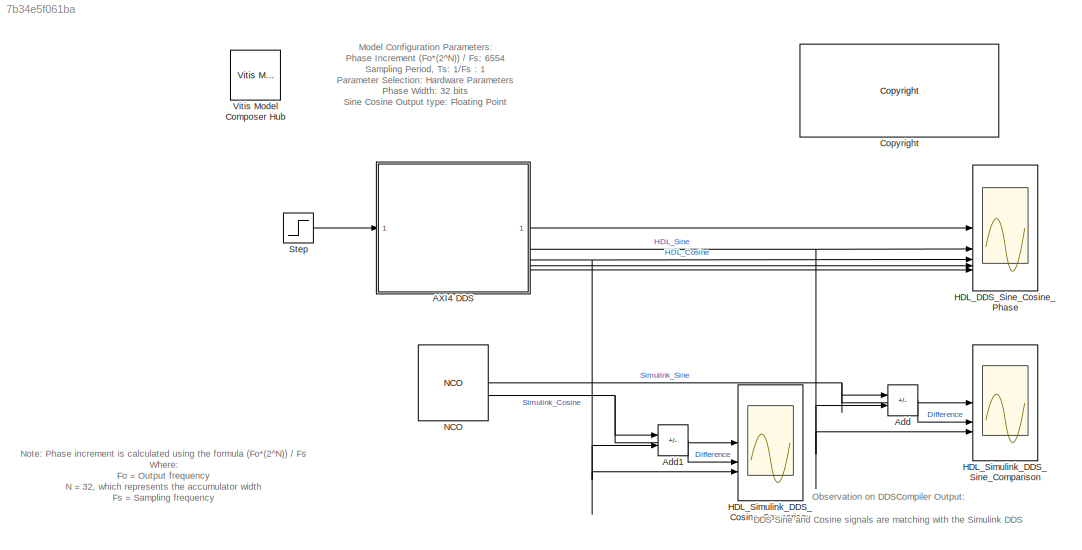
MODEL slx_7b34e5f061ba
KIND model
CONFIG AbsTol = auto
CONFIG EnableMultiTasking = on
CONFIG FixedStep = auto
CONFIG MaxStep = auto
CONFIG MinStep = auto
CONFIG RelTol = 1e-3
CONFIG SampleTimeConstraint = Unconstrained
CONFIG SolverName = VariableStepDiscrete
CONFIG StartTime = 0.0
CONFIG StopTime = 1e6
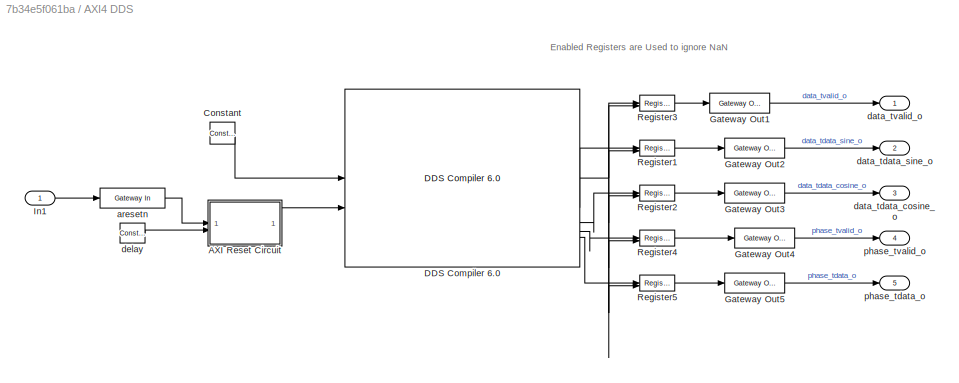
BLOCK [SubSystem] AXI4 DDS
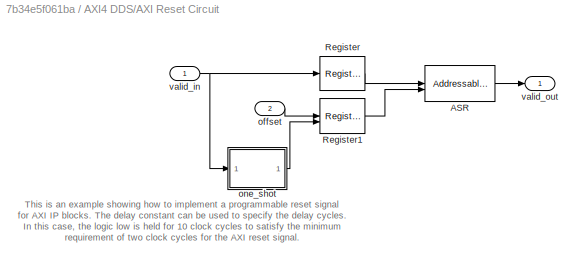
BLOCK [SubSystem] AXI4 DDS/AXI Reset Circuit
BLOCK [Reference] AXI4 DDS/AXI Reset Circuit/ASR  REF=hdlBasic/Addressable Shift Register
  SourceBlock = hdlBasic/Addressable Shift Register
  SourceType = Addressable Shift Register Block
BLOCK [Reference] AXI4 DDS/AXI Reset Circuit/Register  REF=hdlBasic/Register
  SourceBlock = hdlBasic/Register
  SourceType = Register Block
BLOCK [Reference] AXI4 DDS/AXI Reset Circuit/Register1  REF=hdlBasic/Register
  SourceBlock = hdlBasic/Register
  SourceType = Register Block
BLOCK [Inport] AXI4 DDS/AXI Reset Circuit/offset
  Port = 2
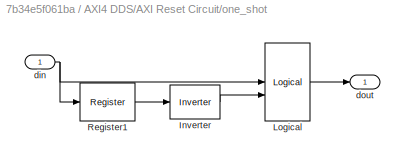
BLOCK [SubSystem] AXI4 DDS/AXI Reset Circuit/one_shot
BLOCK [Reference] AXI4 DDS/AXI Reset Circuit/one_shot/Inverter  REF=hdlBasic/Inverter
  SourceBlock = hdlBasic/Inverter
  SourceType = Inverter Block
BLOCK [Reference] AXI4 DDS/AXI Reset Circuit/one_shot/Logical  REF=hdlBasic/Logical
  SourceBlock = hdlBasic/Logical
  SourceType = Logical Block Block
BLOCK [Reference] AXI4 DDS/AXI Reset Circuit/one_shot/Register1  REF=hdlBasic/Register
  SourceBlock = hdlBasic/Register
  SourceType = Register Block
BLOCK [Inport] AXI4 DDS/AXI Reset Circuit/one_shot/din
BLOCK [Outport] AXI4 DDS/AXI Reset Circuit/one_shot/dout
  VectorParamsAs1DForOutWhenUnconnected = off
BLOCK [Inport] AXI4 DDS/AXI Reset Circuit/valid_in
BLOCK [Outport] AXI4 DDS/AXI Reset Circuit/valid_out
  VectorParamsAs1DForOutWhenUnconnected = off
BLOCK [Reference] AXI4 DDS/Constant  REF=hdlBasic/Constant
  SourceBlock = hdlBasic/Constant
  SourceType = Constant Block Block
BLOCK [Reference] AXI4 DDS/DDS Compiler 6.0  REF=hdlDSPIP/DDS Compiler 6.0 
  SourceBlock = hdlDSPIP/DDS Compiler 6.0
  SourceType = DDS Compiler 6.0 Block
BLOCK [Reference] AXI4 DDS/Gateway Out1  REF=hdlBasic/Gateway Out
  SourceBlock = hdlBasic/Gateway Out
  SourceType = Gateway Out Block
BLOCK [Reference] AXI4 DDS/Gateway Out2  REF=hdlBasic/Gateway Out
  SourceBlock = hdlBasic/Gateway Out
  SourceType = Gateway Out Block
BLOCK [Reference] AXI4 DDS/Gateway Out3  REF=hdlBasic/Gateway Out
  SourceBlock = hdlBasic/Gateway Out
  SourceType = Gateway Out Block
BLOCK [Reference] AXI4 DDS/Gateway Out4  REF=hdlBasic/Gateway Out
  SourceBlock = hdlBasic/Gateway Out
  SourceType = Gateway Out Block
BLOCK [Reference] AXI4 DDS/Gateway Out5  REF=hdlBasic/Gateway Out
  SourceBlock = hdlBasic/Gateway Out
  SourceType = Gateway Out Block
BLOCK [Inport] AXI4 DDS/In1
BLOCK [Reference] AXI4 DDS/Register1  REF=hdlBasic/Register
  SourceBlock = hdlBasic/Register
  SourceType = Register Block
BLOCK [Reference] AXI4 DDS/Register2  REF=hdlBasic/Register
  SourceBlock = hdlBasic/Register
  SourceType = Register Block
BLOCK [Reference] AXI4 DDS/Register3  REF=hdlBasic/Register
  SourceBlock = hdlBasic/Register
  SourceType = Register Block
BLOCK [Reference] AXI4 DDS/Register4  REF=hdlBasic/Register
  SourceBlock = hdlBasic/Register
  SourceType = Register Block
BLOCK [Reference] AXI4 DDS/Register5  REF=hdlBasic/Register
  SourceBlock = hdlBasic/Register
  SourceType = Register Block
BLOCK [Reference] AXI4 DDS/aresetn  REF=hdlBasic/Gateway In
  SourceBlock = hdlBasic/Gateway In
  SourceType = Gateway In Block
BLOCK [Outport] AXI4 DDS/data_tdata_cosine_o
  Port = 3
BLOCK [Outport] AXI4 DDS/data_tdata_sine_o
  Port = 2
BLOCK [Outport] AXI4 DDS/data_tvalid_o
BLOCK [Reference] AXI4 DDS/delay  REF=hdlBasic/Constant
  SourceBlock = hdlBasic/Constant
  SourceType = Constant Block Block
BLOCK [Outport] AXI4 DDS/phase_tdata_o
  Port = 5
BLOCK [Outport] AXI4 DDS/phase_tvalid_o
  Port = 4
BLOCK [Sum] Add
  IconShape = rectangular
  Inputs = +-
BLOCK [Sum] Add1
  IconShape = rectangular
  Inputs = +-
BLOCK [Reference] <copyright redacted>
  SourceBlock = hdlUtilities/<copyright redacted>
  SourceType = Xilinx <copyright redacted>
BLOCK [Scope] HDL_DDS_Sine_Cosine_Phase
  Floating = off
  NumInputPorts = 5
  ScopeSpecificationString = Simulink.scopes.TimeScopeBlockCfg('CurrentConfiguration', extmgr.ConfigurationSet(extmgr.Configuration('Core','General UI',true,'DisplayFullSourceName',false,'ShowMainToolbar',true),extmgr.Configuration('Sources','WiredSimulink',true,'DataLogging',false,'DataLoggingVariableName','ScopeData','DataLoggingLimitDataPoints',false,'DataLoggingMaxPoints','5000','DataLoggingDecimateData',false,'DataLoggin...<+4338ch>
BLOCK [Scope] HDL_Simulink_DDS_Cosine_Comparison
  Floating = off
  NumInputPorts = 3
  ScopeSpecificationString = Simulink.scopes.TimeScopeBlockCfg('CurrentConfiguration', extmgr.ConfigurationSet(extmgr.Configuration('Core','General UI',true,'DisplayFullSourceName',false,'ShowMainToolbar',true),extmgr.Configuration('Sources','WiredSimulink',true,'DataLogging',false,'DataLoggingVariableName','ScopeData1','DataLoggingLimitDataPoints',false,'DataLoggingMaxPoints','5000','DataLoggingDecimateData',false,'DataLoggi...<+3552ch>
BLOCK [Scope] HDL_Simulink_DDS_Sine_Comparison
  Floating = off
  NumInputPorts = 3
  ScopeSpecificationString = Simulink.scopes.TimeScopeBlockCfg('CurrentConfiguration', extmgr.ConfigurationSet(extmgr.Configuration('Core','General UI',true,'DisplayFullSourceName',false,'ShowMainToolbar',true),extmgr.Configuration('Sources','WiredSimulink',true,'DataLogging',false,'DataLoggingVariableName','ScopeData2','DataLoggingLimitDataPoints',false,'DataLoggingMaxPoints','5000','DataLoggingDecimateData',false,'DataLoggi...<+3546ch>
BLOCK [Reference] NCO  REF=dspsigops/NCO
  SourceBlock = dspsigops/NCO
  SourceType = NCO
BLOCK [Step] Step
  SampleTime = 0
  Time = 5
BLOCK [Reference] Vitis Model Composer Hub  REF=vmcUtilities/Vitis Model Composer Hub
  SourceBlock = vmcUtilities/Vitis Model Composer Hub
  SourceType = VMC Hub
  Tag = genX
  UserDataPersistent = on
ANNOTATION (root): Note : Phase increment is calculated using the formula (Fo*(2^N)) / Fs Where: Fo = Output frequency N = 32, which represents the accumulator width Fs = Sampling frequency
ANNOTATION (root): Observation on DDSCompiler Output: DDS Sine and Cosine signals are matching with the Simulink DDS
ANNOTATION (root): Model Configuration Parameters: Phase Increment (Fo*(2^N)) / Fs: 6554 Sampling Period, Ts: 1/Fs : 1 Parameter Selection: Hardware Parameters Phase Width: 32 bits Sine Cosine Output type: Floating Point
ANNOTATION AXI4 DDS: Enabled Registers are Used to ignore NaN
ANNOTATION AXI4 DDS/AXI Reset Circuit: This is an example showing how to implement a programmable reset signal for AXI IP blocks. The delay constant can be used to specify the delay cycles. In this case, the logic low is held for 10 clock cycles to satisfy the minimum requirement of two clock cycles for the AXI reset signal.
LINE AXI4 DDS/AXI Reset Circuit/ASR:1 -> AXI4 DDS/AXI Reset Circuit/valid_out:1
LINE AXI4 DDS/AXI Reset Circuit/Register1:1 -> AXI4 DDS/AXI Reset Circuit/ASR:2
LINE AXI4 DDS/AXI Reset Circuit/Register:1 -> AXI4 DDS/AXI Reset Circuit/ASR:1
LINE AXI4 DDS/AXI Reset Circuit/offset:1 -> AXI4 DDS/AXI Reset Circuit/Register1:1
LINE AXI4 DDS/AXI Reset Circuit/one_shot/Inverter:1 -> AXI4 DDS/AXI Reset Circuit/one_shot/Logical:2
LINE AXI4 DDS/AXI Reset Circuit/one_shot/Logical:1 -> AXI4 DDS/AXI Reset Circuit/one_shot/dout:1
LINE AXI4 DDS/AXI Reset Circuit/one_shot/Register1:1 -> AXI4 DDS/AXI Reset Circuit/one_shot/Inverter:1
NET AXI4 DDS/AXI Reset Circuit/one_shot/din:1 -> AXI4 DDS/AXI Reset Circuit/one_shot/Logical:1, AXI4 DDS/AXI Reset Circuit/one_shot/Register1:1
LINE AXI4 DDS/AXI Reset Circuit/one_shot:1 -> AXI4 DDS/AXI Reset Circuit/Register1:2
NET AXI4 DDS/AXI Reset Circuit/valid_in:1 -> AXI4 DDS/AXI Reset Circuit/Register:1, AXI4 DDS/AXI Reset Circuit/one_shot:1
LINE AXI4 DDS/AXI Reset Circuit:1 -> AXI4 DDS/DDS Compiler 6.0:2
LINE AXI4 DDS/Constant:1 -> AXI4 DDS/DDS Compiler 6.0:1
NET AXI4 DDS/DDS Compiler 6.0:1 -> AXI4 DDS/Register1:2, AXI4 DDS/Register2:2, AXI4 DDS/Register3:1, AXI4 DDS/Register3:2, AXI4 DDS/Register4:2, AXI4 DDS/Register5:2
LINE AXI4 DDS/DDS Compiler 6.0:2 -> AXI4 DDS/Register1:1
LINE AXI4 DDS/DDS Compiler 6.0:3 -> AXI4 DDS/Register2:1
LINE AXI4 DDS/DDS Compiler 6.0:4 -> AXI4 DDS/Register4:1
LINE AXI4 DDS/DDS Compiler 6.0:5 -> AXI4 DDS/Register5:1
LINE AXI4 DDS/Gateway Out1:1 -> AXI4 DDS/data_tvalid_o:1
LINE AXI4 DDS/Gateway Out2:1 -> AXI4 DDS/data_tdata_sine_o:1
LINE AXI4 DDS/Gateway Out3:1 -> AXI4 DDS/data_tdata_cosine_o:1
LINE AXI4 DDS/Gateway Out4:1 -> AXI4 DDS/phase_tvalid_o:1
LINE AXI4 DDS/Gateway Out5:1 -> AXI4 DDS/phase_tdata_o:1
LINE AXI4 DDS/In1:1 -> AXI4 DDS/aresetn:1
LINE AXI4 DDS/Register1:1 -> AXI4 DDS/Gateway Out2:1
LINE AXI4 DDS/Register2:1 -> AXI4 DDS/Gateway Out3:1
LINE AXI4 DDS/Register3:1 -> AXI4 DDS/Gateway Out1:1
LINE AXI4 DDS/Register4:1 -> AXI4 DDS/Gateway Out4:1
LINE AXI4 DDS/Register5:1 -> AXI4 DDS/Gateway Out5:1
LINE AXI4 DDS/aresetn:1 -> AXI4 DDS/AXI Reset Circuit:1
LINE AXI4 DDS/delay:1 -> AXI4 DDS/AXI Reset Circuit:2
LINE AXI4 DDS:1 -> HDL_DDS_Sine_Cosine_Phase:1
NET AXI4 DDS:2 -> Add:2, HDL_DDS_Sine_Cosine_Phase:2, HDL_Simulink_DDS_Sine_Comparison:3
NET AXI4 DDS:3 -> Add1:2, HDL_DDS_Sine_Cosine_Phase:3, HDL_Simulink_DDS_Cosine_Comparison:3
LINE AXI4 DDS:4 -> HDL_DDS_Sine_Cosine_Phase:4
LINE AXI4 DDS:5 -> HDL_DDS_Sine_Cosine_Phase:5
LINE Add1:1 -> HDL_Simulink_DDS_Cosine_Comparison:2
LINE Add:1 -> HDL_Simulink_DDS_Sine_Comparison:2
NET NCO:1 -> Add:1, HDL_Simulink_DDS_Sine_Comparison:1
NET NCO:2 -> Add1:1, HDL_Simulink_DDS_Cosine_Comparison:1
LINE Step:1 -> AXI4 DDS:1
note: NET lines group one-source signal fan-out (src -> all destinations, sorted); 1:1 wires keep LINE
